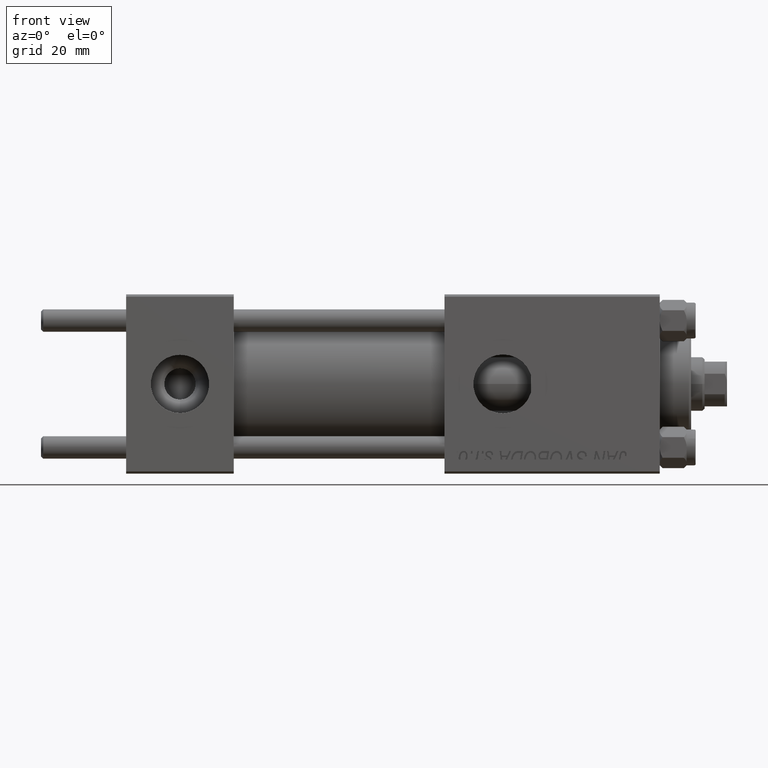
[diagram: clean part render]
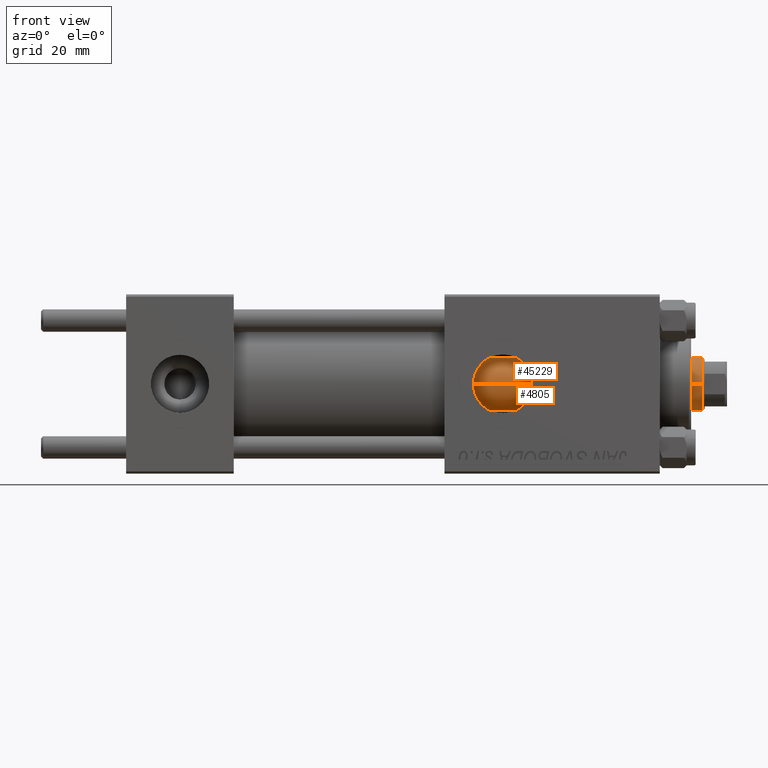
[diagram: same view with one multi-face feature highlighted, each face labeled with its STEP entity id]
A machine part, front view. The highlighted faces form ONE feature: a constant-radius fillet chain: 2 tangent blend faces with common blend radius 6 mm. The faces share edges in the B-rep.
Their STEP definitions:
[1] entity #4805 (Cylinder):
#1446 = VECTOR ( 'NONE', #23248, 1000.000000000000000 ) ;
#2606 = DIRECTION ( 'NONE',  ( -1.000000000000000000, 0.000000000000000000, 0.000000000000000000 ) ) ;
#2728 = VERTEX_POINT ( 'NONE', #40312 ) ;
#4694 = DIRECTION ( 'NONE',  ( 0.000000000000000000, 0.000000000000000000, -1.000000000000000000 ) ) ;
#4805 = ADVANCED_FACE ( 'NONE', ( #32826 ), #48187, .T. ) ;
#6002 = DIRECTION ( 'NONE',  ( 0.000000000000000000, 0.000000000000000000, 1.000000000000000000 ) ) ;
#11134 = VERTEX_POINT ( 'NONE', #41335 ) ;
#13261 = DIRECTION ( 'NONE',  ( 1.000000000000000000, 0.000000000000000000, 0.000000000000000000 ) ) ;
#13487 = ORIENTED_EDGE ( 'NONE', *, *, #22458, .F. ) ;
#14954 = CARTESIAN_POINT ( 'NONE',  ( 6.000000000000000888, 7.347880794884120722E-16, 105.0000000000000000 ) ) ;
#15237 = EDGE_LOOP ( 'NONE', ( #38483, #36269, #27337, #13487 ) ) ;
#15716 = VERTEX_POINT ( 'NONE', #41612 ) ;
#16390 = LINE ( 'NONE', #35023, #18642 ) ;
#18642 = VECTOR ( 'NONE', #46604, 1000.000000000000000 ) ;
#19573 = EDGE_CURVE ( 'NONE', #11134, #15716, #33124, .T. ) ;
#21609 = CARTESIAN_POINT ( 'NONE',  ( 0.000000000000000000, 0.000000000000000000, 27.00000000000000000 ) ) ;
#22458 = EDGE_CURVE ( 'NONE', #11134, #40859, #16390, .T. ) ;
#23248 = DIRECTION ( 'NONE',  ( -0.000000000000000000, -0.000000000000000000, -1.000000000000000000 ) ) ;
#23938 = AXIS2_PLACEMENT_3D ( 'NONE', #40878, #37100, #2606 ) ;
#25390 = DIRECTION ( 'NONE',  ( 1.000000000000000000, 0.000000000000000000, 0.000000000000000000 ) ) ;
#27337 = ORIENTED_EDGE ( 'NONE', *, *, #40960, .T. ) ;
#29023 = EDGE_CURVE ( 'NONE', #15716, #2728, #34320, .T. ) ;
#32826 = FACE_OUTER_BOUND ( 'NONE', #15237, .T. ) ;
#33124 = CIRCLE ( 'NONE', #39568, 6.000000000000000888 ) ;
#34320 = LINE ( 'NONE', #14954, #1446 ) ;
#35023 = CARTESIAN_POINT ( 'NONE',  ( -6.000000000000000888, 0.000000000000000000, 105.0000000000000000 ) ) ;
#36269 = ORIENTED_EDGE ( 'NONE', *, *, #29023, .T. ) ;
#37100 = DIRECTION ( 'NONE',  ( -0.000000000000000000, -0.000000000000000000, -1.000000000000000000 ) ) ;
#38483 = ORIENTED_EDGE ( 'NONE', *, *, #19573, .T. ) ;
#39514 = CARTESIAN_POINT ( 'NONE',  ( -6.000000000000000888, 0.000000000000000000, 27.00000000000000000 ) ) ;
#39568 = AXIS2_PLACEMENT_3D ( 'NONE', #47730, #4694, #13261 ) ;
#40306 = AXIS2_PLACEMENT_3D ( 'NONE', #21609, #6002, #25390 ) ;
#40312 = CARTESIAN_POINT ( 'NONE',  ( 6.000000000000000888, 7.347880794884120722E-16, 27.00000000000000000 ) ) ;
#40859 = VERTEX_POINT ( 'NONE', #39514 ) ;
#40878 = CARTESIAN_POINT ( 'NONE',  ( 0.000000000000000000, 0.000000000000000000, 105.0000000000000000 ) ) ;
#40960 = EDGE_CURVE ( 'NONE', #2728, #40859, #46731, .T. ) ;
#41335 = CARTESIAN_POINT ( 'NONE',  ( -6.000000000000000888, 0.000000000000000000, 104.5000000000000142 ) ) ;
#41612 = CARTESIAN_POINT ( 'NONE',  ( 6.000000000000000888, 7.347880794884120722E-16, 104.5000000000000142 ) ) ;
#46604 = DIRECTION ( 'NONE',  ( -0.000000000000000000, -0.000000000000000000, -1.000000000000000000 ) ) ;
#46731 = CIRCLE ( 'NONE', #40306, 6.000000000000000888 ) ;
#47730 = CARTESIAN_POINT ( 'NONE',  ( 0.000000000000000000, 0.000000000000000000, 104.5000000000000142 ) ) ;
#48187 = CYLINDRICAL_SURFACE ( 'NONE', #23938, 6.000000000000000888 ) ;
[2] entity #45229 (Cylinder):
#1446 = VECTOR ( 'NONE', #23248, 1000.000000000000000 ) ;
#1528 = EDGE_CURVE ( 'NONE', #15716, #11134, #14999, .T. ) ;
#2728 = VERTEX_POINT ( 'NONE', #40312 ) ;
#5210 = DIRECTION ( 'NONE',  ( 0.000000000000000000, 0.000000000000000000, -1.000000000000000000 ) ) ;
#8102 = CYLINDRICAL_SURFACE ( 'NONE', #37921, 6.000000000000000888 ) ;
#11061 = DIRECTION ( 'NONE',  ( 1.000000000000000000, 0.000000000000000000, 0.000000000000000000 ) ) ;
#11134 = VERTEX_POINT ( 'NONE', #41335 ) ;
#12565 = ORIENTED_EDGE ( 'NONE', *, *, #33295, .T. ) ;
#14954 = CARTESIAN_POINT ( 'NONE',  ( 6.000000000000000888, 7.347880794884120722E-16, 105.0000000000000000 ) ) ;
#14999 = CIRCLE ( 'NONE', #28675, 6.000000000000000888 ) ;
#15716 = VERTEX_POINT ( 'NONE', #41612 ) ;
#16055 = CARTESIAN_POINT ( 'NONE',  ( 0.000000000000000000, 0.000000000000000000, 104.5000000000000142 ) ) ;
#16307 = DIRECTION ( 'NONE',  ( 1.000000000000000000, 0.000000000000000000, 0.000000000000000000 ) ) ;
#16390 = LINE ( 'NONE', #35023, #18642 ) ;
#16393 = FACE_OUTER_BOUND ( 'NONE', #38060, .T. ) ;
#18642 = VECTOR ( 'NONE', #46604, 1000.000000000000000 ) ;
#22389 = CARTESIAN_POINT ( 'NONE',  ( 0.000000000000000000, 0.000000000000000000, 27.00000000000000000 ) ) ;
#22458 = EDGE_CURVE ( 'NONE', #11134, #40859, #16390, .T. ) ;
#23248 = DIRECTION ( 'NONE',  ( -0.000000000000000000, -0.000000000000000000, -1.000000000000000000 ) ) ;
#24134 = ORIENTED_EDGE ( 'NONE', *, *, #1528, .T. ) ;
#28675 = AXIS2_PLACEMENT_3D ( 'NONE', #16055, #5210, #16307 ) ;
#28837 = AXIS2_PLACEMENT_3D ( 'NONE', #22389, #49556, #11061 ) ;
#29023 = EDGE_CURVE ( 'NONE', #15716, #2728, #34320, .T. ) ;
#30756 = DIRECTION ( 'NONE',  ( -1.000000000000000000, 0.000000000000000000, 0.000000000000000000 ) ) ;
#33295 = EDGE_CURVE ( 'NONE', #40859, #2728, #40090, .T. ) ;
#34320 = LINE ( 'NONE', #14954, #1446 ) ;
#35023 = CARTESIAN_POINT ( 'NONE',  ( -6.000000000000000888, 0.000000000000000000, 105.0000000000000000 ) ) ;
#37921 = AXIS2_PLACEMENT_3D ( 'NONE', #43083, #39062, #30756 ) ;
#38060 = EDGE_LOOP ( 'NONE', ( #39736, #24134, #47788, #12565 ) ) ;
#39062 = DIRECTION ( 'NONE',  ( -0.000000000000000000, -0.000000000000000000, -1.000000000000000000 ) ) ;
#39514 = CARTESIAN_POINT ( 'NONE',  ( -6.000000000000000888, 0.000000000000000000, 27.00000000000000000 ) ) ;
#39736 = ORIENTED_EDGE ( 'NONE', *, *, #29023, .F. ) ;
#40090 = CIRCLE ( 'NONE', #28837, 6.000000000000000888 ) ;
#40312 = CARTESIAN_POINT ( 'NONE',  ( 6.000000000000000888, 7.347880794884120722E-16, 27.00000000000000000 ) ) ;
#40859 = VERTEX_POINT ( 'NONE', #39514 ) ;
#41335 = CARTESIAN_POINT ( 'NONE',  ( -6.000000000000000888, 0.000000000000000000, 104.5000000000000142 ) ) ;
#41612 = CARTESIAN_POINT ( 'NONE',  ( 6.000000000000000888, 7.347880794884120722E-16, 104.5000000000000142 ) ) ;
#43083 = CARTESIAN_POINT ( 'NONE',  ( 0.000000000000000000, 0.000000000000000000, 105.0000000000000000 ) ) ;
#45229 = ADVANCED_FACE ( 'NONE', ( #16393 ), #8102, .T. ) ;
#46604 = DIRECTION ( 'NONE',  ( -0.000000000000000000, -0.000000000000000000, -1.000000000000000000 ) ) ;
#47788 = ORIENTED_EDGE ( 'NONE', *, *, #22458, .T. ) ;
#49556 = DIRECTION ( 'NONE',  ( 0.000000000000000000, 0.000000000000000000, 1.000000000000000000 ) ) ;